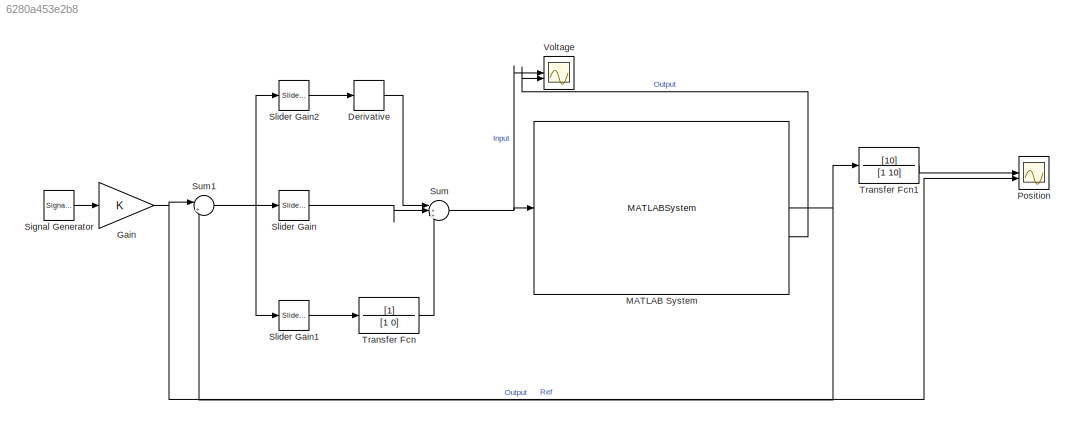
MODEL slx_6280a453e2b8
KIND model
CONFIG AbsTol = auto
CONFIG EnableMultiTasking = off
CONFIG FixedStep = .02
CONFIG MaxStep = auto
CONFIG MinStep = auto
CONFIG RelTol = 1e-3
CONFIG SampleTimeConstraint = Unconstrained
CONFIG SolverName = FixedStepAuto
CONFIG StartTime = 0.0
CONFIG StopTime = inf
BLOCK [Derivative] Derivative
BLOCK [Gain] Gain
BLOCK [MATLABSystem] MATLAB System
  BaudRate = 115200
  COMPort = /dev/ttyACM0
  MaskType = ArduinoSerial
  SimulateUsing = Interpreted execution
  System = ArduinoSerial
BLOCK [Scope] Position
  ActiveDisplayYMaximum = 109165.75
  ActiveDisplayYMinimum = -12131.749999999998
  Floating = off
  GraphicalSettings = {"Style":{"BackgroundColor":[0.12941176470588237,0.12941176470588237,0.12941176470588237],"AxesColor":[0.07058823529411765,0.07058823529411765,0.07058823529411765],"LabelsColor":[0.8509803921568627,0.8509803921568627,0.8509803921568627],"PreserveColors":false,"Visible":[true,true],"LineStyle":["-","-"],"LineWidth":[1.5,1.5],"BarWidth":[0.9,0.9],"LineColor":["auto","auto"],"LineFaceAlpha":[1,1],"Li...<+2082ch>
  MultipleDisplayCache = [{"MaxYLimMag":109165.75,"MaxYLimReal":109165.75,"MinYLimMag":0,"MinYLimReal":-12131.749999999998,"PlotAsMagnitudePhase":false,"ShowGrid":true,"ShowLegend":false,"Title":"%<SignalLabel>","YLabel":""}]
  NumInputPorts = 2
  ScopeFrameLocation = window
  Visible = on
  WasSavedAsWebScope = on
  WindowPosition = [1056.000000,585.000000,865.000000,547.000000,]
BLOCK [SignalGenerator] Signal Generator
  Frequency = .5
  WaveForm = square
BLOCK [Reference] Slider Gain  REF=simulink/Math
Operations/Slider
Gain
  SourceBlock = simulink/Math\nOperations/Slider\nGain
  SourceType = Slider Gain
BLOCK [Reference] Slider Gain1  REF=simulink/Math
Operations/Slider
Gain
  SourceBlock = simulink/Math\nOperations/Slider\nGain
  SourceType = Slider Gain
BLOCK [Reference] Slider Gain2  REF=simulink/Math
Operations/Slider
Gain
  SourceBlock = simulink/Math\nOperations/Slider\nGain
  SourceType = Slider Gain
BLOCK [Sum] Sum
  Inputs = |+++
BLOCK [Sum] Sum1
  Inputs = |+-
BLOCK [TransferFcn] Transfer Fcn
  Denominator = [1 0]
BLOCK [TransferFcn] Transfer Fcn1
  Denominator = [1 10]
  Numerator = [10]
BLOCK [Scope] Voltage
  ActiveDisplayYMaximum = 3759.045299999998
  ActiveDisplayYMinimum = -108237.6717
  DataLoggingVariableName = ScopeData1
  Floating = off
  GraphicalSettings = {"Style":{"BackgroundColor":[0.12941176470588237,0.12941176470588237,0.12941176470588237],"AxesColor":[0.07058823529411765,0.07058823529411765,0.07058823529411765],"LabelsColor":[0.8509803921568627,0.8509803921568627,0.8509803921568627],"PreserveColors":false,"Visible":[true,true],"LineStyle":["-","-"],"LineWidth":[1.5,1.5],"BarWidth":[0.9,0.9],"LineColor":["auto","auto"],"LineFaceAlpha":[1,1],"Li...<+2078ch>
  MultipleDisplayCache = [{"MaxYLimMag":108237.6717,"MaxYLimReal":3759.045299999998,"MinYLimMag":0,"MinYLimReal":-108237.6717,"PlotAsMagnitudePhase":false,"ShowGrid":true,"ShowLegend":false,"Title":"%<SignalLabel>","YLabel":""}]
  NumInputPorts = 2
  ScopeFrameLocation = window
  Visible = on
  WasSavedAsWebScope = on
  WindowPosition = [1056.000000,1.000000,865.000000,547.000000,]
LINE Derivative:1 -> Sum:1
NET Gain:1 -> Position:2, Sum1:1
NET MATLAB System:1 -> Sum1:2, Transfer Fcn1:1
LINE MATLAB System:2 -> Voltage:2
LINE Signal Generator:1 -> Gain:1
LINE Slider Gain1:1 -> Transfer Fcn:1
LINE Slider Gain2:1 -> Derivative:1
LINE Slider Gain:1 -> Sum:2
NET Sum1:1 -> Slider Gain1:1, Slider Gain2:1, Slider Gain:1
NET Sum:1 -> MATLAB System:1, Voltage:1
LINE Transfer Fcn1:1 -> Position:1
LINE Transfer Fcn:1 -> Sum:3
note: NET lines group one-source signal fan-out (src -> all destinations, sorted); 1:1 wires keep LINE
